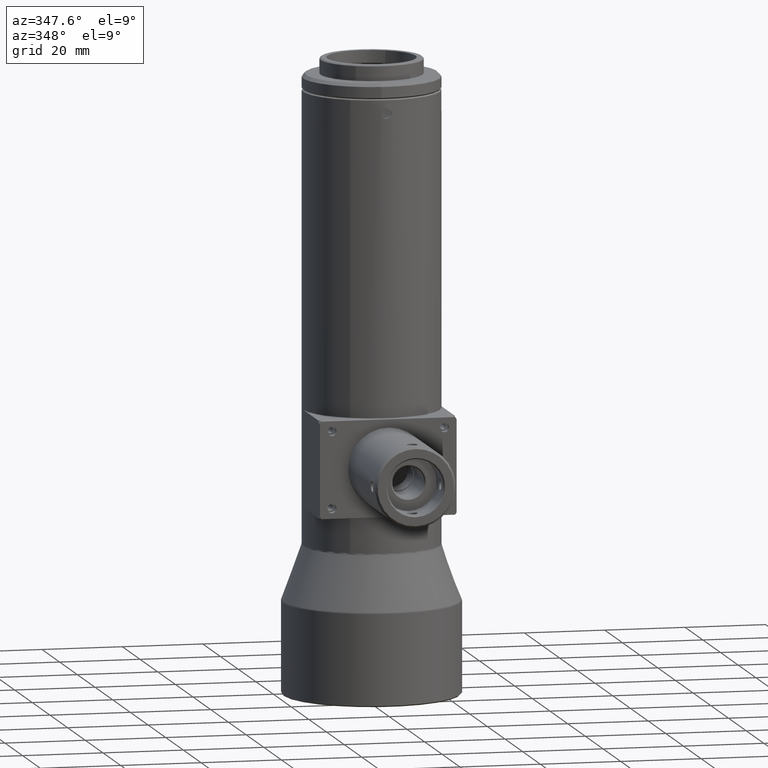
[diagram: clean part render]
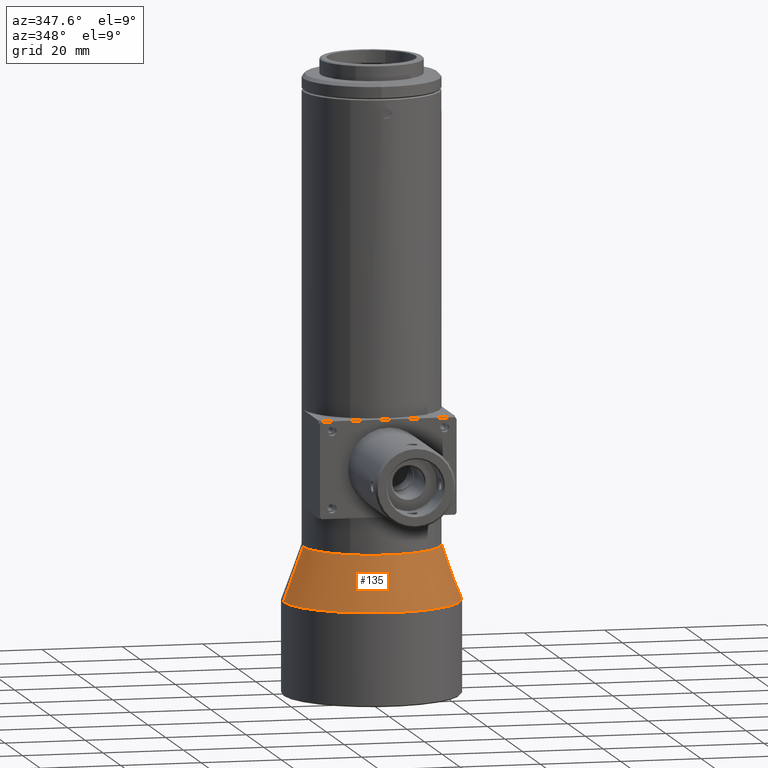
[diagram: same view with one face highlighted and labeled with its STEP entity id]
A machine part, auxiliary view. The second image highlights one B-rep face of the part: STEP entity #135.
In plain terms, the highlighted conical surface has half-angle 20 deg.
Its self-contained STEP definition (entity closure, byte-faithful):
#81 = AXIS2_PLACEMENT_3D ( 'NONE', #3306, #1068, #2424 ) ;
#135 = ADVANCED_FACE ( 'NONE', ( #4589 ), #3235, .T. ) ;
#207 = DIRECTION ( 'NONE',  ( -7.861355739480307100E-016, 5.318304654131179000E-016, -1.000000000000000000 ) ) ;
#1068 = DIRECTION ( 'NONE',  ( -7.861355739480307100E-016, 5.318304654131179000E-016, -1.000000000000000000 ) ) ;
#1093 = EDGE_CURVE ( 'NONE', #3508, #4674, #3331, .T. ) ;
#1151 = ORIENTED_EDGE ( 'NONE', *, *, #2870, .T. ) ;
#1342 = AXIS2_PLACEMENT_3D ( 'NONE', #3810, #3886, #4296 ) ;
#1424 = CARTESIAN_POINT ( 'NONE',  ( -17.06030737921405900, -2.578848101164963800E-014, 46.45561534009366500 ) ) ;
#1447 = VERTEX_POINT ( 'NONE', #3785 ) ;
#1852 = ORIENTED_EDGE ( 'NONE', *, *, #4274, .T. ) ;
#2124 = VECTOR ( 'NONE', #2206, 1000.000000000000000 ) ;
#2206 = DIRECTION ( 'NONE',  ( -0.3420201433256640500, 4.427993681569810400E-016, -0.9396926207859100900 ) ) ;
#2311 = CARTESIAN_POINT ( 'NONE',  ( 17.06030737921411600, -1.801697211133140400E-014, 46.45561534009363700 ) ) ;
#2424 = DIRECTION ( 'NONE',  ( -1.000000000000000000, -1.665334536937734300E-016, 8.134547343925851600E-016 ) ) ;
#2493 = DIRECTION ( 'NONE',  ( -1.000000000000000000, -1.665334536937734800E-016, 6.308085367188389300E-016 ) ) ;
#2870 = EDGE_CURVE ( 'NONE', #5083, #1447, #4670, .T. ) ;
#2939 = CARTESIAN_POINT ( 'NONE',  ( 1.812135732390119000E-014, -1.572952880099917700E-014, 32.88392140543749800 ) ) ;
#2999 = ORIENTED_EDGE ( 'NONE', *, *, #1093, .F. ) ;
#3013 = CIRCLE ( 'NONE', #81, 17.06030737921408800 ) ;
#3219 = CIRCLE ( 'NONE', #1342, 21.93969262078591200 ) ;
#3235 = CONICAL_SURFACE ( 'NONE', #4892, 22.00000000000000000, 0.3490658503988601200 ) ;
#3237 = CARTESIAN_POINT ( 'NONE',  ( 21.93969262078593400, -9.477119253438143600E-015, 33.04961456805467200 ) ) ;
#3306 = CARTESIAN_POINT ( 'NONE',  ( 2.879054872466911500E-014, -2.294736910271174700E-014, 46.45561534009365100 ) ) ;
#3331 = LINE ( 'NONE', #5569, #5372 ) ;
#3508 = VERTEX_POINT ( 'NONE', #2311 ) ;
#3785 = CARTESIAN_POINT ( 'NONE',  ( -21.93969262078589500, -1.947134225790892200E-014, 33.04961456805470000 ) ) ;
#3810 = CARTESIAN_POINT ( 'NONE',  ( 1.825161461339451500E-014, -1.581764947278964700E-014, 33.04961456805468600 ) ) ;
#3886 = DIRECTION ( 'NONE',  ( 7.861355739480307100E-016, -5.318304654131179000E-016, 1.000000000000000000 ) ) ;
#3968 = ORIENTED_EDGE ( 'NONE', *, *, #5248, .T. ) ;
#4229 = DIRECTION ( 'NONE',  ( 0.3420201433256626100, 5.986003469354745100E-016, -0.9396926207859105400 ) ) ;
#4274 = EDGE_CURVE ( 'NONE', #3508, #5083, #3013, .T. ) ;
#4296 = DIRECTION ( 'NONE',  ( 1.000000000000000000, 1.665334536937735100E-016, -6.325424903476762100E-016 ) ) ;
#4589 = FACE_OUTER_BOUND ( 'NONE', #5513, .T. ) ;
#4670 = LINE ( 'NONE', #5263, #2124 ) ;
#4674 = VERTEX_POINT ( 'NONE', #3237 ) ;
#4892 = AXIS2_PLACEMENT_3D ( 'NONE', #2939, #207, #2493 ) ;
#5083 = VERTEX_POINT ( 'NONE', #1424 ) ;
#5248 = EDGE_CURVE ( 'NONE', #1447, #4674, #3219, .T. ) ;
#5263 = CARTESIAN_POINT ( 'NONE',  ( -21.99999999999998200, -1.939326478226219300E-014, 32.88392140543751200 ) ) ;
#5372 = VECTOR ( 'NONE', #4229, 1000.000000000000200 ) ;
#5513 = EDGE_LOOP ( 'NONE', ( #2999, #1852, #1151, #3968 ) ) ;
#5569 = CARTESIAN_POINT ( 'NONE',  ( 22.00000000000001800, -9.371569861611983800E-015, 32.88392140543748400 ) ) ;